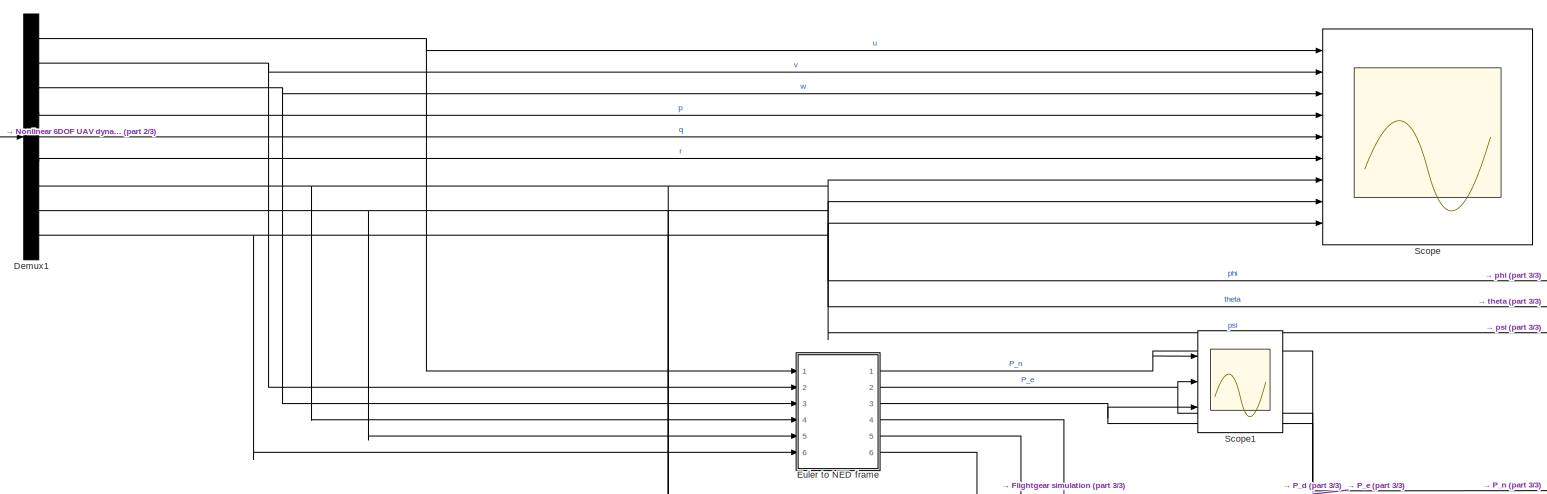
[diagram: root canvas - part 1/3, top center region]
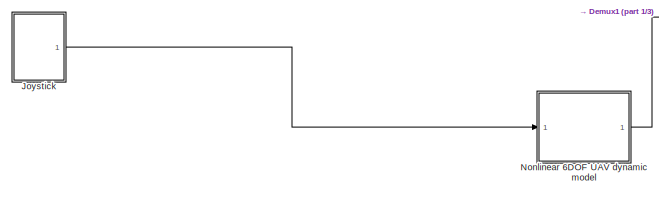
[diagram: root canvas - part 2/3, top left region]
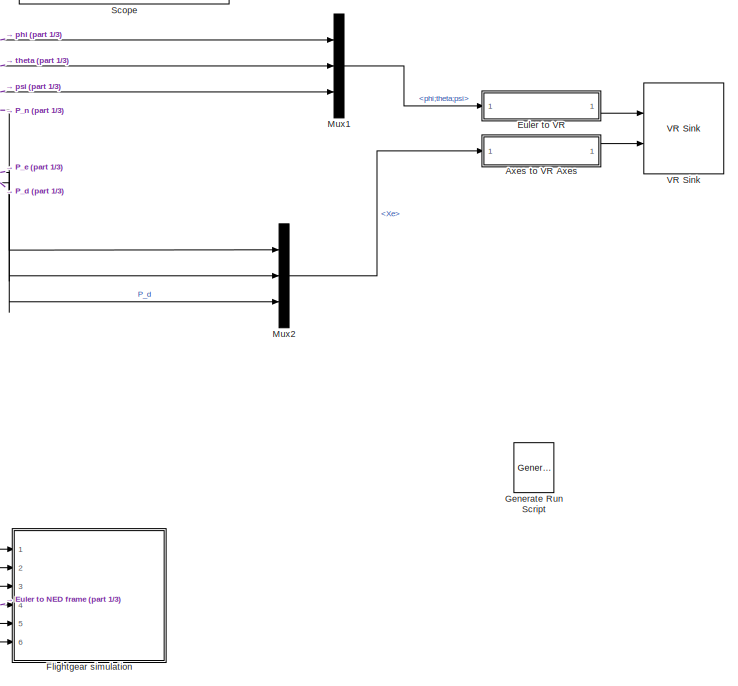
[diagram: root canvas - part 3/3, middle right region]
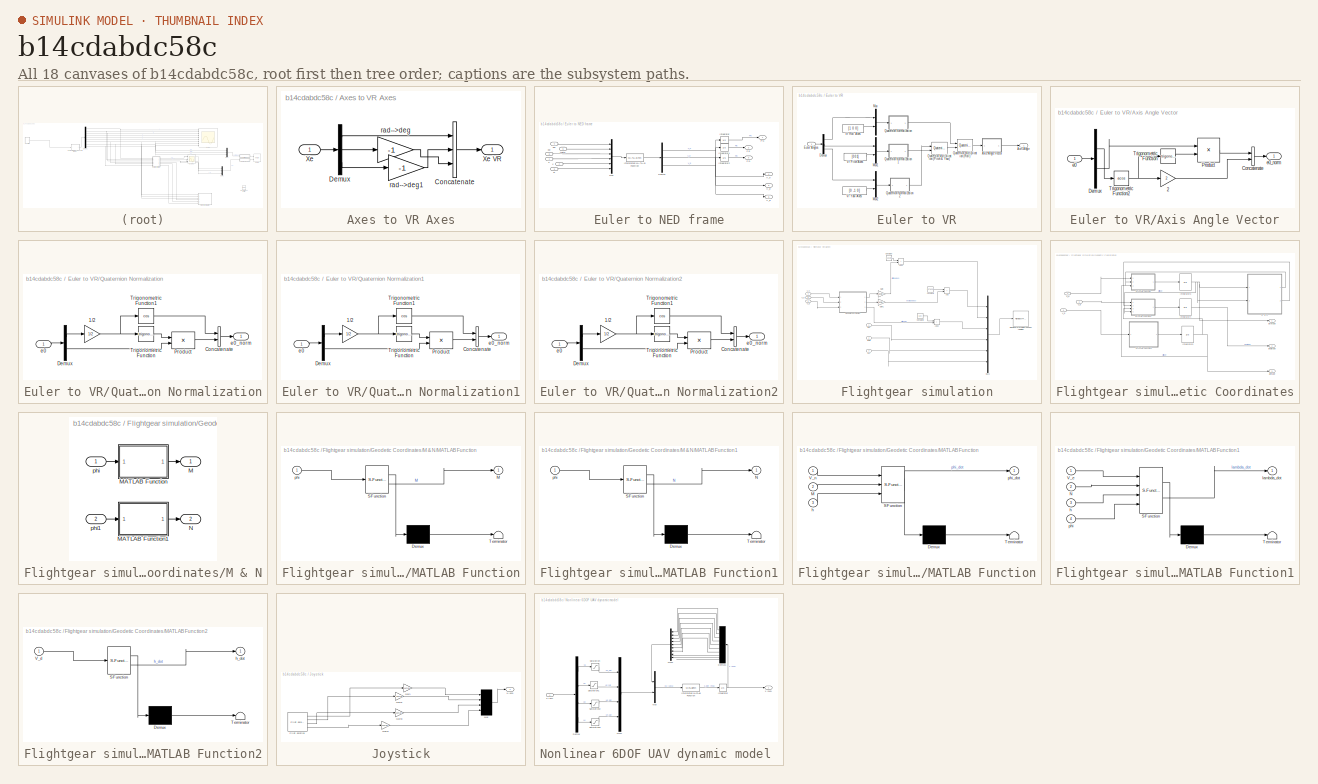
[diagram: thumbnail index - all 18 canvases of the model, root first then tree order]
MODEL slx_b14cdabdc58c
KIND model
CONFIG AbsTol = auto
CONFIG EnableMultiTasking = off
CONFIG FixedStep = auto
CONFIG MaxStep = auto
CONFIG MinStep = auto
CONFIG RelTol = 1e-3
CONFIG SampleTimeConstraint = Unconstrained
CONFIG SolverName = VariableStepAuto
CONFIG StartTime = 0.0
CONFIG StopTime = 180
BLOCK [SubSystem] Axes to VR Axes
  Ports = [1, 1]
  RequestExecContextInheritance = off
BLOCK [Concatenate] Axes to VR Axes/Concatenate
  NumInputs = 3
  Ports = [3, 1]
BLOCK [Demux] Axes to VR Axes/Demux
  DisplayOption = none
  Outputs = 3
  Ports = [1, 3]
BLOCK [Inport] Axes to VR Axes/Xe
BLOCK [Outport] Axes to VR Axes/Xe VR
  VectorParamsAs1DForOutWhenUnconnected = off
BLOCK [Gain] Axes to VR Axes/rad-->deg
  Gain = -1
  NameLocation = top
  OutDataTypeStr = Inherit: Same as input
  ParamDataTypeStr = Inherit: Same as input
  SaturateOnIntegerOverflow = on
BLOCK [Gain] Axes to VR Axes/rad-->deg1
  Gain = -1
  NameLocation = top
  OutDataTypeStr = Inherit: Same as input
  ParamDataTypeStr = Inherit: Same as input
  SaturateOnIntegerOverflow = on
BLOCK [Demux] Demux1
  Outputs = 9
  Ports = [1, 9]
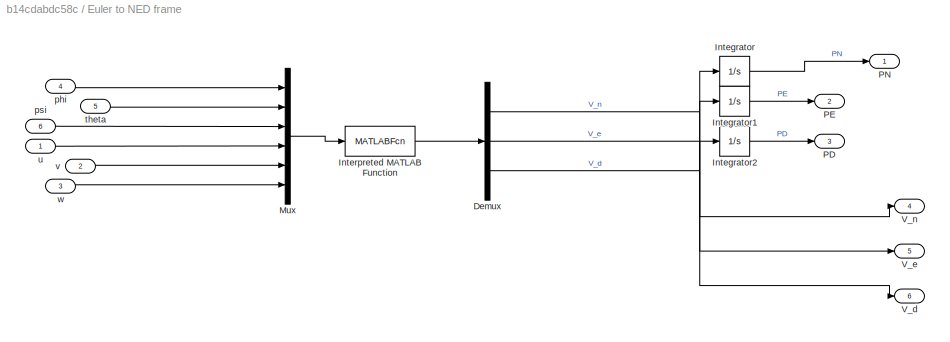
BLOCK [SubSystem] Euler to NED frame
  Ports = [6, 6]
  RequestExecContextInheritance = off
BLOCK [Demux] Euler to NED frame/Demux
  Outputs = 3
  Ports = [1, 3]
BLOCK [Integrator] Euler to NED frame/Integrator
  Ports = [1, 1]
BLOCK [Integrator] Euler to NED frame/Integrator1
  Ports = [1, 1]
BLOCK [Integrator] Euler to NED frame/Integrator2
  Ports = [1, 1]
BLOCK [MATLABFcn] Euler to NED frame/Interpreted MATLAB Function
  MATLABFcn = DCM(u(1),u(2),u(3),u(4),u(5),u(6))
  Output1D = off
  OutputDimensions = 3
  Ports = [1, 1]
BLOCK [Mux] Euler to NED frame/Mux
  DisplayOption = bar
  Inputs = 6
  Ports = [6, 1]
BLOCK [Outport] Euler to NED frame/PD
  Port = 3
BLOCK [Outport] Euler to NED frame/PE
  Port = 2
BLOCK [Outport] Euler to NED frame/PN
BLOCK [Outport] Euler to NED frame/V_d
  Port = 6
BLOCK [Outport] Euler to NED frame/V_e
  Port = 5
BLOCK [Outport] Euler to NED frame/V_n
  Port = 4
BLOCK [Inport] Euler to NED frame/phi
  Port = 4
BLOCK [Inport] Euler to NED frame/psi
  Port = 6
BLOCK [Inport] Euler to NED frame/theta
  Port = 5
BLOCK [Inport] Euler to NED frame/u
BLOCK [Inport] Euler to NED frame/v
  Port = 2
BLOCK [Inport] Euler to NED frame/w
  Port = 3
BLOCK [SubSystem] Euler to VR
  Ports = [1, 1]
  RequestExecContextInheritance = off
BLOCK [Outport] Euler to VR/Axis Angle
  VectorParamsAs1DForOutWhenUnconnected = off
BLOCK [SubSystem] Euler to VR/Axis Angle Vector
  Ports = [1, 1]
  RequestExecContextInheritance = off
BLOCK [Gain] Euler to VR/Axis Angle Vector/2
  Gain = 2
  OutDataTypeStr = Inherit: Same as input
  ParamDataTypeStr = Inherit: Same as input
  SaturateOnIntegerOverflow = on
BLOCK [Concatenate] Euler to VR/Axis Angle Vector/Concatenate
  Ports = [2, 1]
BLOCK [Demux] Euler to VR/Axis Angle Vector/Demux
  DisplayOption = none
  Outputs = [1 3 ]
  Ports = [1, 2]
BLOCK [Product] Euler to VR/Axis Angle Vector/Product
  InputSameDT = on
  Inputs = */
  OutDataTypeStr = Inherit: Same as first input
  Ports = [2, 1]
  SaturateOnIntegerOverflow = on
BLOCK [Trigonometry] Euler to VR/Axis Angle Vector/Trigonometric Function
  Ports = [1, 1]
BLOCK [Trigonometry] Euler to VR/Axis Angle Vector/Trigonometric Function2
  Operator = acos
  Ports = [1, 1]
BLOCK [Inport] Euler to VR/Axis Angle Vector/e0
BLOCK [Outport] Euler to VR/Axis Angle Vector/e0_norm
  VectorParamsAs1DForOutWhenUnconnected = off
BLOCK [Demux] Euler to VR/Demux
  DisplayOption = none
  Outputs = 3
  Ports = [1, 3]
BLOCK [Inport] Euler to VR/Euler Angles
BLOCK [Mux] Euler to VR/Mux
  DisplayOption = bar
  Inputs = 2
  Ports = [2, 1]
BLOCK [Mux] Euler to VR/Mux1
  DisplayOption = bar
  Inputs = 2
  Ports = [2, 1]
BLOCK [Mux] Euler to VR/Mux2
  DisplayOption = bar
  Inputs = 2
  Ports = [2, 1]
BLOCK [Reference] Euler to VR/Quaternion Multiplication (Pitch & Yaw)  REF=aerolibutil/Quaternion
Multiplication
  Ports = [2, 1]
  SourceBlock = aerolibutil/Quaternion\nMultiplication
  SourceProductBaseCode = AE
  SourceType = Quaternion Multiplication
BLOCK [Reference] Euler to VR/Quaternion Multiplication (Roll)  REF=aerolibutil/Quaternion
Multiplication
  Ports = [2, 1]
  SourceBlock = aerolibutil/Quaternion\nMultiplication
  SourceProductBaseCode = AE
  SourceType = Quaternion Multiplication
BLOCK [SubSystem] Euler to VR/Quaternion Normalization
  Ports = [1, 1]
  RequestExecContextInheritance = off
BLOCK [Gain] Euler to VR/Quaternion Normalization/1//2
  Gain = 1/2
  OutDataTypeStr = Inherit: Same as input
  ParamDataTypeStr = Inherit: Same as input
  SaturateOnIntegerOverflow = on
BLOCK [Concatenate] Euler to VR/Quaternion Normalization/Concatenate
  Ports = [2, 1]
BLOCK [Demux] Euler to VR/Quaternion Normalization/Demux
  DisplayOption = none
  Outputs = [1 3]
  Ports = [1, 2]
BLOCK [Product] Euler to VR/Quaternion Normalization/Product
  InputSameDT = on
  OutDataTypeStr = Inherit: Same as first input
  Ports = [2, 1]
  SaturateOnIntegerOverflow = on
BLOCK [Trigonometry] Euler to VR/Quaternion Normalization/Trigonometric Function
  Ports = [1, 1]
BLOCK [Trigonometry] Euler to VR/Quaternion Normalization/Trigonometric Function1
  Operator = cos
  Ports = [1, 1]
BLOCK [Inport] Euler to VR/Quaternion Normalization/e0
BLOCK [Outport] Euler to VR/Quaternion Normalization/e0_norm
  VectorParamsAs1DForOutWhenUnconnected = off
BLOCK [SubSystem] Euler to VR/Quaternion Normalization1
  Ports = [1, 1]
  RequestExecContextInheritance = off
BLOCK [Gain] Euler to VR/Quaternion Normalization1/1//2
  Gain = 1/2
  OutDataTypeStr = Inherit: Same as input
  ParamDataTypeStr = Inherit: Same as input
  SaturateOnIntegerOverflow = on
BLOCK [Concatenate] Euler to VR/Quaternion Normalization1/Concatenate
  Ports = [2, 1]
BLOCK [Demux] Euler to VR/Quaternion Normalization1/Demux
  DisplayOption = none
  Outputs = [1 3]
  Ports = [1, 2]
BLOCK [Product] Euler to VR/Quaternion Normalization1/Product
  InputSameDT = on
  OutDataTypeStr = Inherit: Same as first input
  Ports = [2, 1]
  SaturateOnIntegerOverflow = on
BLOCK [Trigonometry] Euler to VR/Quaternion Normalization1/Trigonometric Function
  Ports = [1, 1]
BLOCK [Trigonometry] Euler to VR/Quaternion Normalization1/Trigonometric Function1
  Operator = cos
  Ports = [1, 1]
BLOCK [Inport] Euler to VR/Quaternion Normalization1/e0
BLOCK [Outport] Euler to VR/Quaternion Normalization1/e0_norm
  VectorParamsAs1DForOutWhenUnconnected = off
BLOCK [SubSystem] Euler to VR/Quaternion Normalization2
  Ports = [1, 1]
  RequestExecContextInheritance = off
BLOCK [Gain] Euler to VR/Quaternion Normalization2/1//2
  Gain = 1/2
  OutDataTypeStr = Inherit: Same as input
  ParamDataTypeStr = Inherit: Same as input
  SaturateOnIntegerOverflow = on
BLOCK [Concatenate] Euler to VR/Quaternion Normalization2/Concatenate
  Ports = [2, 1]
BLOCK [Demux] Euler to VR/Quaternion Normalization2/Demux
  DisplayOption = none
  Outputs = [1 3]
  Ports = [1, 2]
BLOCK [Product] Euler to VR/Quaternion Normalization2/Product
  InputSameDT = on
  OutDataTypeStr = Inherit: Same as first input
  Ports = [2, 1]
  SaturateOnIntegerOverflow = on
BLOCK [Trigonometry] Euler to VR/Quaternion Normalization2/Trigonometric Function
  Ports = [1, 1]
BLOCK [Trigonometry] Euler to VR/Quaternion Normalization2/Trigonometric Function1
  Operator = cos
  Ports = [1, 1]
BLOCK [Inport] Euler to VR/Quaternion Normalization2/e0
BLOCK [Outport] Euler to VR/Quaternion Normalization2/e0_norm
  VectorParamsAs1DForOutWhenUnconnected = off
BLOCK [Constant] Euler to VR/Vr Pitch Axes
  NameLocation = top
  Value = [0 0 1]
BLOCK [Constant] Euler to VR/Vr Roll Axes
  NameLocation = top
  Value = [1 0 0]
BLOCK [Constant] Euler to VR/Vr Yaw Axes
  Value = [0 -1 0]
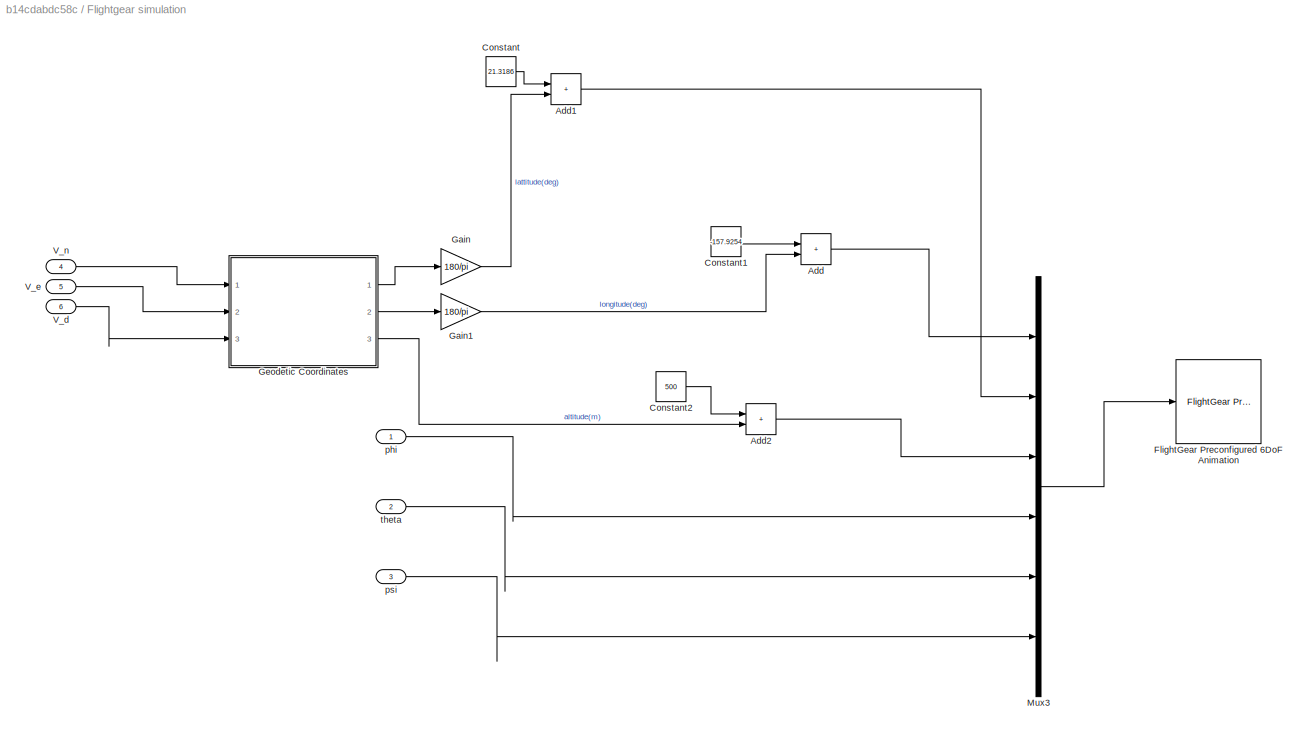
BLOCK [SubSystem] Flightgear simulation
  Ports = [6]
  RequestExecContextInheritance = off
BLOCK [Sum] Flightgear simulation/Add
  IconShape = rectangular
  Ports = [2, 1]
BLOCK [Sum] Flightgear simulation/Add1
  IconShape = rectangular
  Ports = [2, 1]
BLOCK [Sum] Flightgear simulation/Add2
  IconShape = rectangular
  Ports = [2, 1]
BLOCK [Constant] Flightgear simulation/Constant
  Value = 21.3186
BLOCK [Constant] Flightgear simulation/Constant1
  Value = -157.9254
BLOCK [Constant] Flightgear simulation/Constant2
  Value = 500
BLOCK [Reference] Flightgear simulation/FlightGear Preconfigured 6DoF Animation  REF=aerolibfltsims/FlightGear
Preconfigured
6DoF Animation
  Ports = [1]
  SourceBlock = aerolibfltsims/FlightGear\nPreconfigured\n6DoF Animation
  SourceProductBaseCode = AE
  SourceType = FlightGearQuick6DoFAnimation
BLOCK [Gain] Flightgear simulation/Gain
  Gain = 180/pi
BLOCK [Gain] Flightgear simulation/Gain1
  Gain = 180/pi
BLOCK [SubSystem] Flightgear simulation/Geodetic Coordinates
  Ports = [3, 3]
  RequestExecContextInheritance = off
BLOCK [Integrator] Flightgear simulation/Geodetic Coordinates/Integrator3
  Ports = [1, 1]
BLOCK [Integrator] Flightgear simulation/Geodetic Coordinates/Integrator4
  Ports = [1, 1]
BLOCK [Integrator] Flightgear simulation/Geodetic Coordinates/Integrator5
  Ports = [1, 1]
BLOCK [SubSystem] Flightgear simulation/Geodetic Coordinates/M & N
  Ports = [2, 2]
  RequestExecContextInheritance = off
BLOCK [Outport] Flightgear simulation/Geodetic Coordinates/M & N/M
BLOCK [SubSystem] Flightgear simulation/Geodetic Coordinates/M & N/MATLAB Function
  ErrorFcn = Stateflow.Translate.translate
  PermitHierarchicalResolution = ExplicitOnly
  Ports = [1, 1]
  RequestExecContextInheritance = off
  SFBlockType = MATLAB Function
  TreatAsAtomicUnit = on
BLOCK [Demux] Flightgear simulation/Geodetic Coordinates/M & N/MATLAB Function/ Demux 
  Outputs = 1
  Ports = [1, 1]
BLOCK [S-Function] Flightgear simulation/Geodetic Coordinates/M & N/MATLAB Function/ SFunction 
  EnableBusSupport = on
  FunctionName = sf_sfun
  PortCounts = [1 2]
  Ports = [1, 2]
  SFcnIsStateOwnerBlock = off
  SFunctionDeploymentMode = off
  Tag = Stateflow S-Function 2
BLOCK [Terminator] Flightgear simulation/Geodetic Coordinates/M & N/MATLAB Function/ Terminator 
BLOCK [Outport] Flightgear simulation/Geodetic Coordinates/M & N/MATLAB Function/M
BLOCK [Inport] Flightgear simulation/Geodetic Coordinates/M & N/MATLAB Function/phi
BLOCK [SubSystem] Flightgear simulation/Geodetic Coordinates/M & N/MATLAB Function1
  ErrorFcn = Stateflow.Translate.translate
  PermitHierarchicalResolution = ExplicitOnly
  Ports = [1, 1]
  RequestExecContextInheritance = off
  SFBlockType = MATLAB Function
  TreatAsAtomicUnit = on
BLOCK [Demux] Flightgear simulation/Geodetic Coordinates/M & N/MATLAB Function1/ Demux 
  Outputs = 1
  Ports = [1, 1]
BLOCK [S-Function] Flightgear simulation/Geodetic Coordinates/M & N/MATLAB Function1/ SFunction 
  EnableBusSupport = on
  FunctionName = sf_sfun
  PortCounts = [1 2]
  Ports = [1, 2]
  SFcnIsStateOwnerBlock = off
  SFunctionDeploymentMode = off
  Tag = Stateflow S-Function 1
BLOCK [Terminator] Flightgear simulation/Geodetic Coordinates/M & N/MATLAB Function1/ Terminator 
BLOCK [Outport] Flightgear simulation/Geodetic Coordinates/M & N/MATLAB Function1/N
BLOCK [Inport] Flightgear simulation/Geodetic Coordinates/M & N/MATLAB Function1/phi
BLOCK [Outport] Flightgear simulation/Geodetic Coordinates/M & N/N
  Port = 2
BLOCK [Inport] Flightgear simulation/Geodetic Coordinates/M & N/phi
BLOCK [Inport] Flightgear simulation/Geodetic Coordinates/M & N/phi1
  Port = 2
BLOCK [SubSystem] Flightgear simulation/Geodetic Coordinates/MATLAB Function
  ErrorFcn = Stateflow.Translate.translate
  PermitHierarchicalResolution = ExplicitOnly
  Ports = [3, 1]
  RequestExecContextInheritance = off
  SFBlockType = MATLAB Function
  TreatAsAtomicUnit = on
BLOCK [Demux] Flightgear simulation/Geodetic Coordinates/MATLAB Function/ Demux 
  Outputs = 1
  Ports = [1, 1]
BLOCK [S-Function] Flightgear simulation/Geodetic Coordinates/MATLAB Function/ SFunction 
  EnableBusSupport = on
  FunctionName = sf_sfun
  PortCounts = [3 2]
  Ports = [3, 2]
  SFcnIsStateOwnerBlock = off
  SFunctionDeploymentMode = off
  Tag = Stateflow S-Function 3
BLOCK [Terminator] Flightgear simulation/Geodetic Coordinates/MATLAB Function/ Terminator 
BLOCK [Inport] Flightgear simulation/Geodetic Coordinates/MATLAB Function/M
  Port = 2
BLOCK [Inport] Flightgear simulation/Geodetic Coordinates/MATLAB Function/V_n
BLOCK [Inport] Flightgear simulation/Geodetic Coordinates/MATLAB Function/h
  Port = 3
BLOCK [Outport] Flightgear simulation/Geodetic Coordinates/MATLAB Function/phi_dot
BLOCK [SubSystem] Flightgear simulation/Geodetic Coordinates/MATLAB Function1
  ErrorFcn = Stateflow.Translate.translate
  PermitHierarchicalResolution = ExplicitOnly
  Ports = [4, 1]
  RequestExecContextInheritance = off
  SFBlockType = MATLAB Function
  TreatAsAtomicUnit = on
BLOCK [Demux] Flightgear simulation/Geodetic Coordinates/MATLAB Function1/ Demux 
  Outputs = 1
  Ports = [1, 1]
BLOCK [S-Function] Flightgear simulation/Geodetic Coordinates/MATLAB Function1/ SFunction 
  EnableBusSupport = on
  FunctionName = sf_sfun
  PortCounts = [4 2]
  Ports = [4, 2]
  SFcnIsStateOwnerBlock = off
  SFunctionDeploymentMode = off
  Tag = Stateflow S-Function 4
BLOCK [Terminator] Flightgear simulation/Geodetic Coordinates/MATLAB Function1/ Terminator 
BLOCK [Inport] Flightgear simulation/Geodetic Coordinates/MATLAB Function1/N
  Port = 2
BLOCK [Inport] Flightgear simulation/Geodetic Coordinates/MATLAB Function1/V_e
BLOCK [Inport] Flightgear simulation/Geodetic Coordinates/MATLAB Function1/h
  Port = 3
BLOCK [Outport] Flightgear simulation/Geodetic Coordinates/MATLAB Function1/lambda_dot
BLOCK [Inport] Flightgear simulation/Geodetic Coordinates/MATLAB Function1/phi
  Port = 4
BLOCK [SubSystem] Flightgear simulation/Geodetic Coordinates/MATLAB Function2
  ErrorFcn = Stateflow.Translate.translate
  PermitHierarchicalResolution = ExplicitOnly
  Ports = [1, 1]
  RequestExecContextInheritance = off
  SFBlockType = MATLAB Function
  TreatAsAtomicUnit = on
BLOCK [Demux] Flightgear simulation/Geodetic Coordinates/MATLAB Function2/ Demux 
  Outputs = 1
  Ports = [1, 1]
BLOCK [S-Function] Flightgear simulation/Geodetic Coordinates/MATLAB Function2/ SFunction 
  EnableBusSupport = on
  FunctionName = sf_sfun
  PortCounts = [1 2]
  Ports = [1, 2]
  SFcnIsStateOwnerBlock = off
  SFunctionDeploymentMode = off
  Tag = Stateflow S-Function 5
BLOCK [Terminator] Flightgear simulation/Geodetic Coordinates/MATLAB Function2/ Terminator 
BLOCK [Inport] Flightgear simulation/Geodetic Coordinates/MATLAB Function2/V_d
BLOCK [Outport] Flightgear simulation/Geodetic Coordinates/MATLAB Function2/h_dot
BLOCK [Inport] Flightgear simulation/Geodetic Coordinates/V_d
  Port = 3
BLOCK [Inport] Flightgear simulation/Geodetic Coordinates/V_e
  Port = 2
BLOCK [Inport] Flightgear simulation/Geodetic Coordinates/V_n
BLOCK [Outport] Flightgear simulation/Geodetic Coordinates/altitude
  Port = 3
BLOCK [Outport] Flightgear simulation/Geodetic Coordinates/lattitude
BLOCK [Outport] Flightgear simulation/Geodetic Coordinates/longitude
  Port = 2
BLOCK [Mux] Flightgear simulation/Mux3
  DisplayOption = bar
  Inputs = 6
  Ports = [6, 1]
BLOCK [Inport] Flightgear simulation/V_d
  Port = 6
BLOCK [Inport] Flightgear simulation/V_e
  Port = 5
BLOCK [Inport] Flightgear simulation/V_n
  Port = 4
BLOCK [Inport] Flightgear simulation/phi
BLOCK [Inport] Flightgear simulation/psi
  Port = 3
BLOCK [Inport] Flightgear simulation/theta
  Port = 2
BLOCK [Reference] Generate Run Script  REF=aerolibfltsims/Generate
Run Script
  Ports = []
  SourceBlock = aerolibfltsims/Generate\nRun Script
  SourceProductBaseCode = AE
  SourceType = Generate FlightGear Run Script
BLOCK [SubSystem] Joystick
  Ports = [0, 1]
  RequestExecContextInheritance = off
BLOCK [Gain] Joystick/Gain
  Gain = u1max
BLOCK [Gain] Joystick/Gain1
  Gain = -u2max
BLOCK [Gain] Joystick/Gain3
  Gain = u3max
BLOCK [Gain] Joystick/Gain4
  Gain = u4max
BLOCK [Mux] Joystick/Mux
  DisplayOption = bar
  Ports = [4, 1]
BLOCK [Reference] Joystick/Pilot Joystick  REF=aerolibanimutils/Pilot Joystick
  Ports = [0, 4]
  SourceBlock = aerolibanimutils/Pilot Joystick
  SourceProductBaseCode = AE
  SourceType = PilotJoystick
BLOCK [Outport] Joystick/u (4x1)
BLOCK [Mux] Mux1
  DisplayOption = bar
  Inputs = 3
  Ports = [3, 1]
BLOCK [Mux] Mux2
  DisplayOption = bar
  Inputs = 3
  Ports = [3, 1]
BLOCK [SubSystem] Nonlinear 6DOF UAV dynamic model 
  Ports = [1, 1]
  RequestExecContextInheritance = off
BLOCK [Demux] Nonlinear 6DOF UAV dynamic model /Demux
  Ports = [1, 4]
BLOCK [Demux] Nonlinear 6DOF UAV dynamic model /Demux1
  NameLocation = top
  Outputs = 9
  Ports = [1, 9]
BLOCK [Integrator] Nonlinear 6DOF UAV dynamic model /Integrator
  InitialCondition = x0
  Ports = [1, 1]
BLOCK [MATLABFcn] Nonlinear 6DOF UAV dynamic model /Interpreted MATLAB Function
  MATLABFcn = UAV_model_aerosonde(u(1:9),u(10:13))
  Ports = [1, 1]
BLOCK [Mux] Nonlinear 6DOF UAV dynamic model /Mux
  DisplayOption = bar
  Inputs = 2
  Ports = [2, 1]
BLOCK [Mux] Nonlinear 6DOF UAV dynamic model /Mux1
  DisplayOption = bar
  Ports = [4, 1]
BLOCK [Mux] Nonlinear 6DOF UAV dynamic model /Mux2
  DisplayOption = bar
  Inputs = 9
  NameLocation = top
  Ports = [9, 1]
BLOCK [Saturate] Nonlinear 6DOF UAV dynamic model /Saturation
  LowerLimit = u1min
  UpperLimit = u1max
BLOCK [Saturate] Nonlinear 6DOF UAV dynamic model /Saturation1
  LowerLimit = u2min
  UpperLimit = u2max
BLOCK [Saturate] Nonlinear 6DOF UAV dynamic model /Saturation2
  LowerLimit = u3min
  UpperLimit = u3max
BLOCK [Saturate] Nonlinear 6DOF UAV dynamic model /Saturation3
  LowerLimit = 0
  UpperLimit = u4max
BLOCK [Inport] Nonlinear 6DOF UAV dynamic model /u (4x1)
BLOCK [Outport] Nonlinear 6DOF UAV dynamic model /x (9X1)
BLOCK [Scope] Scope
  Floating = off
  NumInputPorts = 9
  Ports = [9]
  ScopeSpecificationString = Simulink.scopes.TimeScopeBlockCfg('CurrentConfiguration', extmgr.ConfigurationSet(extmgr.Configuration('Core','General UI',true),extmgr.Configuration('Core','Source UI',true),extmgr.Configuration('Sources','WiredSimulink',true),extmgr.Configuration('Visuals','Time Domain',true,'SerializedDisplays',{struct('MinYLimReal','20.57388','MaxYLimReal','41.62225','YLabelReal','','MinYLimMag','20.57388','Ma...<+6849ch>
BLOCK [Scope] Scope1
  Floating = off
  NumInputPorts = 3
  Ports = [3]
  ScopeSpecificationString = Simulink.scopes.TimeScopeBlockCfg('CurrentConfiguration', extmgr.ConfigurationSet(extmgr.Configuration('Core','General UI',true),extmgr.Configuration('Core','Source UI',true),extmgr.Configuration('Sources','WiredSimulink',true,'DataLoggingVariableName','ScopeData1'),extmgr.Configuration('Visuals','Time Domain',true,'SerializedDisplays',{struct('MinYLimReal','-275.93566','MaxYLimReal','2483.42096',...<+2727ch>
BLOCK [Reference] VR Sink  REF=vrlib/VR Sink
  InstantiateOnLoad = on
  Ports = [2]
  SourceBlock = vrlib/VR Sink
  SourceProductBaseCode = SL
  SourceType = Virtual Reality Sink
LINE Axes to VR Axes/Concatenate:1 -> Axes to VR Axes/Xe VR:1
LINE Axes to VR Axes/Demux:1 -> Axes to VR Axes/Concatenate:1
LINE Axes to VR Axes/Demux:2 -> Axes to VR Axes/rad-->deg:1
LINE Axes to VR Axes/Demux:3 -> Axes to VR Axes/rad-->deg1:1
LINE Axes to VR Axes/Xe:1 -> Axes to VR Axes/Demux:1
LINE Axes to VR Axes/rad-->deg1:1 -> Axes to VR Axes/Concatenate:2
LINE Axes to VR Axes/rad-->deg:1 -> Axes to VR Axes/Concatenate:3
LINE Axes to VR Axes:1 -> VR Sink:2
NET Demux1:1 -> Euler to NED frame:1, Scope:1
NET Demux1:2 -> Euler to NED frame:2, Scope:2
NET Demux1:3 -> Euler to NED frame:3, Scope:3
LINE Demux1:4 -> Scope:4
LINE Demux1:5 -> Scope:5
LINE Demux1:6 -> Scope:6
NET Demux1:7 -> Euler to NED frame:4, Flightgear simulation:1, Mux1:1, Scope:7
NET Demux1:8 -> Euler to NED frame:5, Flightgear simulation:2, Mux1:2, Scope:8
NET Demux1:9 -> Euler to NED frame:6, Flightgear simulation:3, Mux1:3, Scope:9
NET Euler to NED frame/Demux:1 -> Euler to NED frame/Integrator:1, Euler to NED frame/V_n:1
NET Euler to NED frame/Demux:2 -> Euler to NED frame/Integrator1:1, Euler to NED frame/V_e:1
NET Euler to NED frame/Demux:3 -> Euler to NED frame/Integrator2:1, Euler to NED frame/V_d:1
LINE Euler to NED frame/Integrator1:1 -> Euler to NED frame/PE:1
LINE Euler to NED frame/Integrator2:1 -> Euler to NED frame/PD:1
LINE Euler to NED frame/Integrator:1 -> Euler to NED frame/PN:1
LINE Euler to NED frame/Interpreted MATLAB Function:1 -> Euler to NED frame/Demux:1
LINE Euler to NED frame/Mux:1 -> Euler to NED frame/Interpreted MATLAB Function:1
LINE Euler to NED frame/phi:1 -> Euler to NED frame/Mux:1
LINE Euler to NED frame/psi:1 -> Euler to NED frame/Mux:3
LINE Euler to NED frame/theta:1 -> Euler to NED frame/Mux:2
LINE Euler to NED frame/u:1 -> Euler to NED frame/Mux:4
LINE Euler to NED frame/v:1 -> Euler to NED frame/Mux:5
LINE Euler to NED frame/w:1 -> Euler to NED frame/Mux:6
NET Euler to NED frame:1 -> Mux2:1, Scope1:1
NET Euler to NED frame:2 -> Mux2:2, Scope1:2
NET Euler to NED frame:3 -> Mux2:3, Scope1:3
LINE Euler to NED frame:4 -> Flightgear simulation:4
LINE Euler to NED frame:5 -> Flightgear simulation:5
LINE Euler to NED frame:6 -> Flightgear simulation:6
LINE Euler to VR/Axis Angle Vector/2:1 -> Euler to VR/Axis Angle Vector/Concatenate:2
LINE Euler to VR/Axis Angle Vector/Concatenate:1 -> Euler to VR/Axis Angle Vector/e0_norm:1
LINE Euler to VR/Axis Angle Vector/Demux:1 -> Euler to VR/Axis Angle Vector/Trigonometric Function2:1
LINE Euler to VR/Axis Angle Vector/Demux:2 -> Euler to VR/Axis Angle Vector/Product:1
LINE Euler to VR/Axis Angle Vector/Product:1 -> Euler to VR/Axis Angle Vector/Concatenate:1
NET Euler to VR/Axis Angle Vector/Trigonometric Function2:1 -> Euler to VR/Axis Angle Vector/2:1, Euler to VR/Axis Angle Vector/Trigonometric Function:1
LINE Euler to VR/Axis Angle Vector/Trigonometric Function:1 -> Euler to VR/Axis Angle Vector/Product:2
LINE Euler to VR/Axis Angle Vector/e0:1 -> Euler to VR/Axis Angle Vector/Demux:1
LINE Euler to VR/Axis Angle Vector:1 -> Euler to VR/Axis Angle:1
LINE Euler to VR/Demux:1 -> Euler to VR/Mux:1
LINE Euler to VR/Demux:2 -> Euler to VR/Mux1:1
LINE Euler to VR/Demux:3 -> Euler to VR/Mux2:1
LINE Euler to VR/Euler Angles:1 -> Euler to VR/Demux:1
LINE Euler to VR/Mux1:1 -> Euler to VR/Quaternion Normalization1:1
LINE Euler to VR/Mux2:1 -> Euler to VR/Quaternion Normalization2:1
LINE Euler to VR/Mux:1 -> Euler to VR/Quaternion Normalization:1
LINE Euler to VR/Quaternion Multiplication (Pitch & Yaw):1 -> Euler to VR/Quaternion Multiplication (Roll):2
LINE Euler to VR/Quaternion Multiplication (Roll):1 -> Euler to VR/Axis Angle Vector:1
NET Euler to VR/Quaternion Normalization/1//2:1 -> Euler to VR/Quaternion Normalization/Trigonometric Function1:1, Euler to VR/Quaternion Normalization/Trigonometric Function:1
LINE Euler to VR/Quaternion Normalization/Concatenate:1 -> Euler to VR/Quaternion Normalization/e0_norm:1
LINE Euler to VR/Quaternion Normalization/Demux:1 -> Euler to VR/Quaternion Normalization/1//2:1
LINE Euler to VR/Quaternion Normalization/Demux:2 -> Euler to VR/Quaternion Normalization/Product:2
LINE Euler to VR/Quaternion Normalization/Product:1 -> Euler to VR/Quaternion Normalization/Concatenate:2
LINE Euler to VR/Quaternion Normalization/Trigonometric Function1:1 -> Euler to VR/Quaternion Normalization/Concatenate:1
LINE Euler to VR/Quaternion Normalization/Trigonometric Function:1 -> Euler to VR/Quaternion Normalization/Product:1
LINE Euler to VR/Quaternion Normalization/e0:1 -> Euler to VR/Quaternion Normalization/Demux:1
NET Euler to VR/Quaternion Normalization1/1//2:1 -> Euler to VR/Quaternion Normalization1/Trigonometric Function1:1, Euler to VR/Quaternion Normalization1/Trigonometric Function:1
LINE Euler to VR/Quaternion Normalization1/Concatenate:1 -> Euler to VR/Quaternion Normalization1/e0_norm:1
LINE Euler to VR/Quaternion Normalization1/Demux:1 -> Euler to VR/Quaternion Normalization1/1//2:1
LINE Euler to VR/Quaternion Normalization1/Demux:2 -> Euler to VR/Quaternion Normalization1/Product:2
LINE Euler to VR/Quaternion Normalization1/Product:1 -> Euler to VR/Quaternion Normalization1/Concatenate:2
LINE Euler to VR/Quaternion Normalization1/Trigonometric Function1:1 -> Euler to VR/Quaternion Normalization1/Concatenate:1
LINE Euler to VR/Quaternion Normalization1/Trigonometric Function:1 -> Euler to VR/Quaternion Normalization1/Product:1
LINE Euler to VR/Quaternion Normalization1/e0:1 -> Euler to VR/Quaternion Normalization1/Demux:1
LINE Euler to VR/Quaternion Normalization1:1 -> Euler to VR/Quaternion Multiplication (Pitch & Yaw):2
NET Euler to VR/Quaternion Normalization2/1//2:1 -> Euler to VR/Quaternion Normalization2/Trigonometric Function1:1, Euler to VR/Quaternion Normalization2/Trigonometric Function:1
LINE Euler to VR/Quaternion Normalization2/Concatenate:1 -> Euler to VR/Quaternion Normalization2/e0_norm:1
LINE Euler to VR/Quaternion Normalization2/Demux:1 -> Euler to VR/Quaternion Normalization2/1//2:1
LINE Euler to VR/Quaternion Normalization2/Demux:2 -> Euler to VR/Quaternion Normalization2/Product:2
LINE Euler to VR/Quaternion Normalization2/Product:1 -> Euler to VR/Quaternion Normalization2/Concatenate:2
LINE Euler to VR/Quaternion Normalization2/Trigonometric Function1:1 -> Euler to VR/Quaternion Normalization2/Concatenate:1
LINE Euler to VR/Quaternion Normalization2/Trigonometric Function:1 -> Euler to VR/Quaternion Normalization2/Product:1
LINE Euler to VR/Quaternion Normalization2/e0:1 -> Euler to VR/Quaternion Normalization2/Demux:1
LINE Euler to VR/Quaternion Normalization2:1 -> Euler to VR/Quaternion Multiplication (Pitch & Yaw):1
LINE Euler to VR/Quaternion Normalization:1 -> Euler to VR/Quaternion Multiplication (Roll):1
LINE Euler to VR/Vr Pitch Axes:1 -> Euler to VR/Mux1:2
LINE Euler to VR/Vr Roll Axes:1 -> Euler to VR/Mux:2
LINE Euler to VR/Vr Yaw Axes:1 -> Euler to VR/Mux2:2
LINE Euler to VR:1 -> VR Sink:1
LINE Flightgear simulation/Add1:1 -> Flightgear simulation/Mux3:2
LINE Flightgear simulation/Add2:1 -> Flightgear simulation/Mux3:3
LINE Flightgear simulation/Add:1 -> Flightgear simulation/Mux3:1
LINE Flightgear simulation/Constant1:1 -> Flightgear simulation/Add:1
LINE Flightgear simulation/Constant2:1 -> Flightgear simulation/Add2:1
LINE Flightgear simulation/Constant:1 -> Flightgear simulation/Add1:1
LINE Flightgear simulation/Gain1:1 -> Flightgear simulation/Add:2
LINE Flightgear simulation/Gain:1 -> Flightgear simulation/Add1:2
NET Flightgear simulation/Geodetic Coordinates/Integrator3:1 -> Flightgear simulation/Geodetic Coordinates/M & N:1, Flightgear simulation/Geodetic Coordinates/M & N:2, Flightgear simulation/Geodetic Coordinates/MATLAB Function1:4, Flightgear simulation/Geodetic Coordinates/lattitude:1
LINE Flightgear simulation/Geodetic Coordinates/Integrator4:1 -> Flightgear simulation/Geodetic Coordinates/longitude:1
NET Flightgear simulation/Geodetic Coordinates/Integrator5:1 -> Flightgear simulation/Geodetic Coordinates/MATLAB Function1:3, Flightgear simulation/Geodetic Coordinates/MATLAB Function:3, Flightgear simulation/Geodetic Coordinates/altitude:1
LINE Flightgear simulation/Geodetic Coordinates/M & N/MATLAB Function1:1 -> Flightgear simulation/Geodetic Coordinates/M & N/N:1
LINE Flightgear simulation/Geodetic Coordinates/M & N/MATLAB Function:1 -> Flightgear simulation/Geodetic Coordinates/M & N/M:1
LINE Flightgear simulation/Geodetic Coordinates/M & N/phi1:1 -> Flightgear simulation/Geodetic Coordinates/M & N/MATLAB Function1:1
LINE Flightgear simulation/Geodetic Coordinates/M & N/phi:1 -> Flightgear simulation/Geodetic Coordinates/M & N/MATLAB Function:1
LINE Flightgear simulation/Geodetic Coordinates/M & N:1 -> Flightgear simulation/Geodetic Coordinates/MATLAB Function:2
LINE Flightgear simulation/Geodetic Coordinates/M & N:2 -> Flightgear simulation/Geodetic Coordinates/MATLAB Function1:2
LINE Flightgear simulation/Geodetic Coordinates/MATLAB Function1:1 -> Flightgear simulation/Geodetic Coordinates/Integrator4:1
LINE Flightgear simulation/Geodetic Coordinates/MATLAB Function2:1 -> Flightgear simulation/Geodetic Coordinates/Integrator5:1
LINE Flightgear simulation/Geodetic Coordinates/MATLAB Function:1 -> Flightgear simulation/Geodetic Coordinates/Integrator3:1
LINE Flightgear simulation/Geodetic Coordinates/V_d:1 -> Flightgear simulation/Geodetic Coordinates/MATLAB Function2:1
LINE Flightgear simulation/Geodetic Coordinates/V_e:1 -> Flightgear simulation/Geodetic Coordinates/MATLAB Function1:1
LINE Flightgear simulation/Geodetic Coordinates/V_n:1 -> Flightgear simulation/Geodetic Coordinates/MATLAB Function:1
LINE Flightgear simulation/Geodetic Coordinates:1 -> Flightgear simulation/Gain:1
LINE Flightgear simulation/Geodetic Coordinates:2 -> Flightgear simulation/Gain1:1
LINE Flightgear simulation/Geodetic Coordinates:3 -> Flightgear simulation/Add2:2
LINE Flightgear simulation/Mux3:1 -> Flightgear simulation/FlightGear Preconfigured 6DoF Animation:1
LINE Flightgear simulation/V_d:1 -> Flightgear simulation/Geodetic Coordinates:3
LINE Flightgear simulation/V_e:1 -> Flightgear simulation/Geodetic Coordinates:2
LINE Flightgear simulation/V_n:1 -> Flightgear simulation/Geodetic Coordinates:1
LINE Flightgear simulation/phi:1 -> Flightgear simulation/Mux3:4
LINE Flightgear simulation/psi:1 -> Flightgear simulation/Mux3:6
LINE Flightgear simulation/theta:1 -> Flightgear simulation/Mux3:5
LINE Joystick/Gain1:1 -> Joystick/Mux:2
LINE Joystick/Gain3:1 -> Joystick/Mux:3
LINE Joystick/Gain4:1 -> Joystick/Mux:4
LINE Joystick/Gain:1 -> Joystick/Mux:1
LINE Joystick/Mux:1 -> Joystick/u (4x1):1
LINE Joystick/Pilot Joystick:1 -> Joystick/Gain:1
LINE Joystick/Pilot Joystick:2 -> Joystick/Gain1:1
LINE Joystick/Pilot Joystick:3 -> Joystick/Gain3:1
LINE Joystick/Pilot Joystick:4 -> Joystick/Gain4:1
LINE Joystick:1 -> Nonlinear 6DOF UAV dynamic model :1
LINE Mux1:1 -> Euler to VR:1
LINE Mux2:1 -> Axes to VR Axes:1
LINE Nonlinear 6DOF UAV dynamic model /Demux1:1 -> Nonlinear 6DOF UAV dynamic model /Mux2:1
LINE Nonlinear 6DOF UAV dynamic model /Demux1:2 -> Nonlinear 6DOF UAV dynamic model /Mux2:2
LINE Nonlinear 6DOF UAV dynamic model /Demux1:3 -> Nonlinear 6DOF UAV dynamic model /Mux2:3
LINE Nonlinear 6DOF UAV dynamic model /Demux1:4 -> Nonlinear 6DOF UAV dynamic model /Mux2:4
LINE Nonlinear 6DOF UAV dynamic model /Demux1:5 -> Nonlinear 6DOF UAV dynamic model /Mux2:5
LINE Nonlinear 6DOF UAV dynamic model /Demux1:6 -> Nonlinear 6DOF UAV dynamic model /Mux2:6
LINE Nonlinear 6DOF UAV dynamic model /Demux1:7 -> Nonlinear 6DOF UAV dynamic model /Mux2:7
LINE Nonlinear 6DOF UAV dynamic model /Demux1:8 -> Nonlinear 6DOF UAV dynamic model /Mux2:8
LINE Nonlinear 6DOF UAV dynamic model /Demux1:9 -> Nonlinear 6DOF UAV dynamic model /Mux2:9
LINE Nonlinear 6DOF UAV dynamic model /Demux:1 -> Nonlinear 6DOF UAV dynamic model /Saturation:1
LINE Nonlinear 6DOF UAV dynamic model /Demux:2 -> Nonlinear 6DOF UAV dynamic model /Saturation1:1
LINE Nonlinear 6DOF UAV dynamic model /Demux:3 -> Nonlinear 6DOF UAV dynamic model /Saturation2:1
LINE Nonlinear 6DOF UAV dynamic model /Demux:4 -> Nonlinear 6DOF UAV dynamic model /Saturation3:1
NET Nonlinear 6DOF UAV dynamic model /Integrator:1 -> Nonlinear 6DOF UAV dynamic model /Demux1:1, Nonlinear 6DOF UAV dynamic model /x (9X1):1
LINE Nonlinear 6DOF UAV dynamic model /Interpreted MATLAB Function:1 -> Nonlinear 6DOF UAV dynamic model /Integrator:1
LINE Nonlinear 6DOF UAV dynamic model /Mux1:1 -> Nonlinear 6DOF UAV dynamic model /Mux:2
LINE Nonlinear 6DOF UAV dynamic model /Mux2:1 -> Nonlinear 6DOF UAV dynamic model /Mux:1
LINE Nonlinear 6DOF UAV dynamic model /Mux:1 -> Nonlinear 6DOF UAV dynamic model /Interpreted MATLAB Function:1
LINE Nonlinear 6DOF UAV dynamic model /Saturation1:1 -> Nonlinear 6DOF UAV dynamic model /Mux1:2
LINE Nonlinear 6DOF UAV dynamic model /Saturation2:1 -> Nonlinear 6DOF UAV dynamic model /Mux1:3
LINE Nonlinear 6DOF UAV dynamic model /Saturation3:1 -> Nonlinear 6DOF UAV dynamic model /Mux1:4
LINE Nonlinear 6DOF UAV dynamic model /Saturation:1 -> Nonlinear 6DOF UAV dynamic model /Mux1:1
LINE Nonlinear 6DOF UAV dynamic model /u (4x1):1 -> Nonlinear 6DOF UAV dynamic model /Demux:1
LINE Nonlinear 6DOF UAV dynamic model :1 -> Demux1:1
note: NET lines group one-source signal fan-out (src -> all destinations, sorted); 1:1 wires keep LINE
CHART Flightgear simulation/Geodetic Coordinates/M & N/MATLAB Function1 states=1 transitions=1
  STATE_LABEL 'eML_blk_kernel()'
  STATE_LABEL 'SCRIPT:\nfunction N = r_n(phi)\n\na = 6378137;\ne = 0.081819190842622;\n\nN = ( a )/ sqrt( 1 - (e^2)*(( sin(phi) )^2) );\n\n\n\nend\n'
CHART Flightgear simulation/Geodetic Coordinates/M & N/MATLAB Function states=1 transitions=1
  STATE_LABEL 'eML_blk_kernel()'
  STATE_LABEL 'SCRIPT:\nfunction M = r_m(phi)\na = 6378137;\ne = 0.081819190842622;\n\nM = ( a*(1 - (e^2)) )/ (( 1 -(e^2)*( ((sin(phi))^2)) )^1.5);\n\n\n\nend\n'
CHART Flightgear simulation/Geodetic Coordinates/MATLAB Function states=1 transitions=1
  STATE_LABEL 'eML_blk_kernel()'
  STATE_LABEL 'SCRIPT:\nfunction phi_dot = latt_dot(V_n,M,h)\n\nphi_dot = V_n/(M+h);\n\n\nend\n'
CHART Flightgear simulation/Geodetic Coordinates/MATLAB Function1 states=1 transitions=1
  STATE_LABEL 'eML_blk_kernel()'
  STATE_LABEL 'SCRIPT:\nfunction lambda_dot = long_dot(V_e,N,h,phi)\n\nlambda_dot = (V_e)/ ( (N+h)*cos(phi) );\n\nend\n'
CHART Flightgear simulation/Geodetic Coordinates/MATLAB Function2 states=1 transitions=1
  STATE_LABEL 'eML_blk_kernel()'
  STATE_LABEL 'SCRIPT:\nfunction h_dot = altitude_dot(V_d)\n\nh_dot = -V_d;\n\n\nend\n'
CHART  states=0 transitions=0
CHART  states=0 transitions=0
CHART  states=0 transitions=0
CHART  states=0 transitions=0
CHART  states=0 transitions=0
